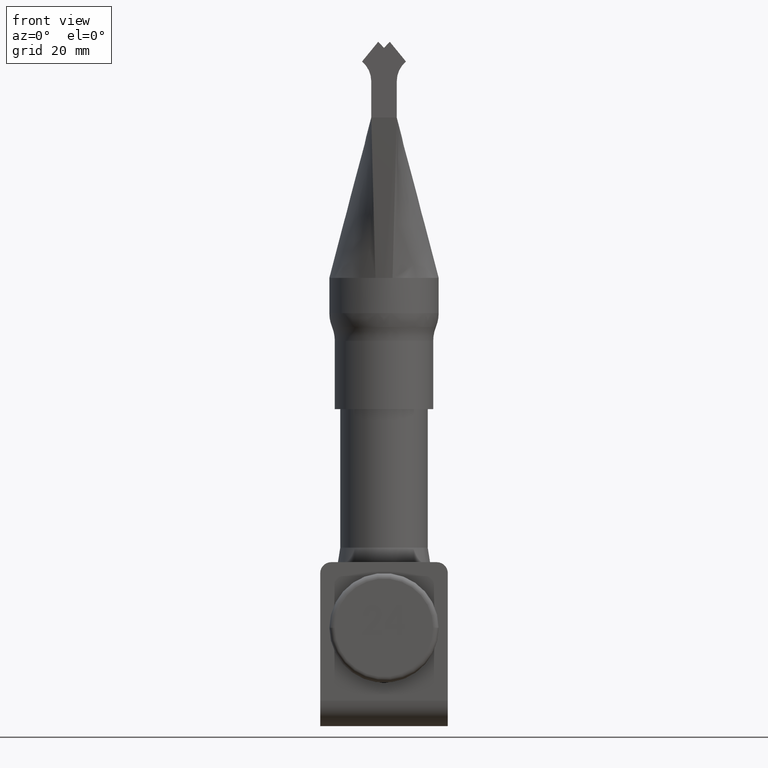
[diagram: clean part render]
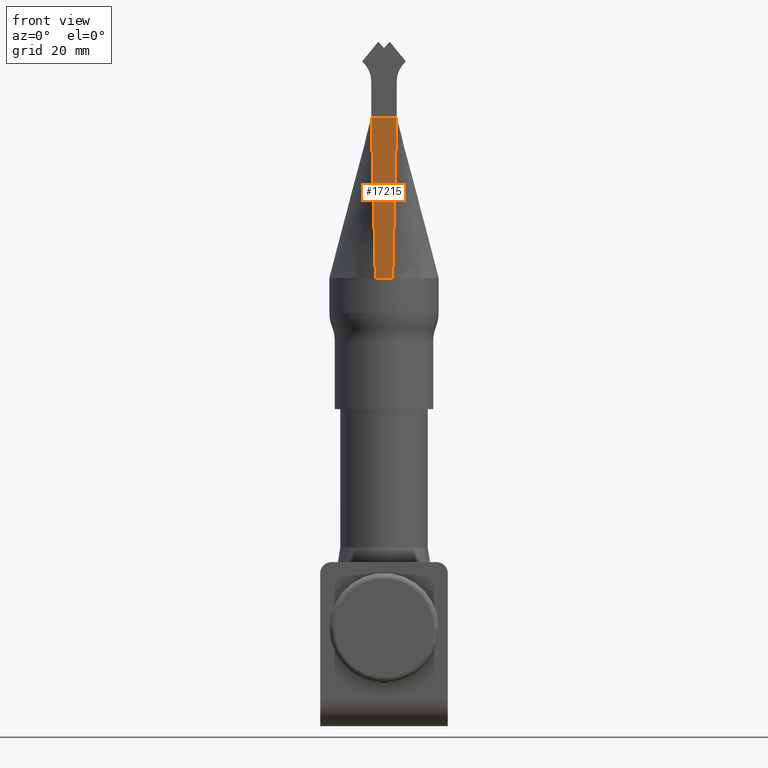
[diagram: same view with one face highlighted and labeled with its STEP entity id]
A machine part, front view. The second image highlights one B-rep face of the part: STEP entity #17215.
In plain terms, the highlighted face is a freeform B-spline surface patch.
Its self-contained STEP definition (entity closure, byte-faithful):
#944 = CARTESIAN_POINT ( 'NONE',  ( -3.581783924020912400, -22.07265637956000100, 80.44440000000000200 ) ) ;
#1356 = CARTESIAN_POINT ( 'NONE',  ( -2.340932838378593700, -22.07133498409400500, 80.44439999999998700 ) ) ;
#1893 = CARTESIAN_POINT ( 'NONE',  ( -2.356732032253958700, -14.81374406239271800, 36.00000000000000700 ) ) ;
#1975 = CARTESIAN_POINT ( 'NONE',  ( 2.356730390204889500, -14.81373377979495000, 36.00000000000000700 ) ) ;
#2855 = CARTESIAN_POINT ( 'NONE',  ( -2.391607597909037900, -14.73436204399964400, 35.56000000000000200 ) ) ;
#3188 = CARTESIAN_POINT ( 'NONE',  ( 1.580907091228484800, -14.93713028772192100, 36.00000000000000700 ) ) ;
#4399 = DIRECTION ( 'NONE',  ( 0.02563530597302258700, -0.1611362089732850900, 0.9865991857108880000 ) ) ;
#4536 = CARTESIAN_POINT ( 'NONE',  ( -3.570000000000002900, -22.00000000000000000, 80.00000000000000000 ) ) ;
#4653 = LINE ( 'NONE', #12990, #20868 ) ;
#4861 = CARTESIAN_POINT ( 'NONE',  ( 2.376169394718436100, -14.73685524299208900, 35.56000000000000200 ) ) ;
#4942 = CARTESIAN_POINT ( 'NONE',  ( 2.340932838378588800, -22.07133498409400500, 80.44439999999998700 ) ) ;
#5025 = CARTESIAN_POINT ( 'NONE',  ( -3.534959354751390700, -22.07260651558015100, 80.44440000000000200 ) ) ;
#5108 = CARTESIAN_POINT ( 'NONE',  ( -1.573382828807442300, -14.86650159059913900, 35.56000000000000200 ) ) ;
#6774 = FACE_OUTER_BOUND ( 'NONE', #21512, .T. ) ;
#6776 = CARTESIAN_POINT ( 'NONE',  ( -2.356725731026978900, -14.81370459502670500, 36.00000000000000700 ) ) ;
#6858 = CARTESIAN_POINT ( 'NONE',  ( 1.170466111312999900, -22.07069999999999900, 80.44439999999998700 ) ) ;
#6940 = CARTESIAN_POINT ( 'NONE',  ( 2.360731191527840200, -14.73934844198453200, 35.56000000000000200 ) ) ;
#6993 = EDGE_CURVE ( 'NONE', #7142, #17659, #21971, .T. ) ;
#7111 = CARTESIAN_POINT ( 'NONE',  ( 1.573382828807436500, -14.86650159059913900, 35.56000000000000200 ) ) ;
#7123 = DIRECTION ( 'NONE',  ( -0.02563530597302262500, -0.1611362089732851800, 0.9865991857108880000 ) ) ;
#7142 = VERTEX_POINT ( 'NONE', #22195 ) ;
#8277 = CARTESIAN_POINT ( 'NONE',  ( -3.500000000000002200, -22.00000000000000000, 80.00000000000000000 ) ) ;
#8307 = CARTESIAN_POINT ( 'NONE',  ( -2.403274849414887900, -14.80629905346499300, 36.00000000000000700 ) ) ;
#8627 = CARTESIAN_POINT ( 'NONE',  ( -1.170466111313003700, -22.07069999999999900, 80.44439999999998700 ) ) ;
#8707 = CARTESIAN_POINT ( 'NONE',  ( 2.403274849414882600, -14.80629905346499500, 36.00000000000000700 ) ) ;
#8873 = CARTESIAN_POINT ( 'NONE',  ( 0.7904840284156090500, -15.00000000000000000, 36.00000000000000000 ) ) ;
#8959 = CARTESIAN_POINT ( 'NONE',  ( 3.546666666666661500, -22.00000000000000000, 80.00000000000000000 ) ) ;
#8997 = ORIENTED_EDGE ( 'NONE', *, *, #9549, .T. ) ;
#9527 = ORIENTED_EDGE ( 'NONE', *, *, #22257, .F. ) ;
#9549 = EDGE_CURVE ( 'NONE', #16452, #9923, #15239, .T. ) ;
#9597 = EDGE_CURVE ( 'NONE', #9923, #7142, #19177, .T. ) ;
#9923 = VERTEX_POINT ( 'NONE', #20081 ) ;
#10035 = CARTESIAN_POINT ( 'NONE',  ( -2.356732032253958700, -14.81374406239271800, 36.00000000000000700 ) ) ;
#10635 = CARTESIAN_POINT ( 'NONE',  ( 3.569999999999994500, -22.00000000000000000, 80.00000000000000000 ) ) ;
#10718 = CARTESIAN_POINT ( 'NONE',  ( -2.333333333333334800, -22.00000000000000000, 79.99999999999998600 ) ) ;
#10800 = CARTESIAN_POINT ( 'NONE',  ( 3.581783924020904400, -22.07265637956000100, 80.44440000000000200 ) ) ;
#10884 = CARTESIAN_POINT ( 'NONE',  ( -3.511547070116629600, -22.07258158359022800, 80.44440000000000200 ) ) ;
#12479 = CARTESIAN_POINT ( 'NONE',  ( 2.391607597909032500, -14.73436204399964600, 35.56000000000000200 ) ) ;
#12561 = CARTESIAN_POINT ( 'NONE',  ( 3.523333333333328500, -22.00000000000000000, 80.00000000000000000 ) ) ;
#12732 = CARTESIAN_POINT ( 'NONE',  ( -1.166666666666668100, -22.00000000000000000, 79.99999999999998600 ) ) ;
#12816 = CARTESIAN_POINT ( 'NONE',  ( -0.7867222020331043900, -14.93000000000000000, 35.55999999999999500 ) ) ;
#12990 = CARTESIAN_POINT ( 'NONE',  ( -2.928362865513490600, -18.40685229751335300, 58.00000000000000000 ) ) ;
#13361 = ORIENTED_EDGE ( 'NONE', *, *, #9597, .T. ) ;
#13447 = CARTESIAN_POINT ( 'NONE',  ( 0.7971672668034468500, -15.06181617058033200, 36.00000001015117600 ) ) ;
#13610 = CARTESIAN_POINT ( 'NONE',  ( -0.7971671322148991000, -15.06181619264289000, 36.00000001403537200 ) ) ;
#14185 = CARTESIAN_POINT ( 'NONE',  ( -3.546666666666669500, -22.00000000000000000, 80.00000000000000000 ) ) ;
#14418 = CARTESIAN_POINT ( 'NONE',  ( 2.387758476618913100, -14.80876756731889900, 36.00000000000000700 ) ) ;
#14761 = CARTESIAN_POINT ( 'NONE',  ( 3.558371639386143800, -22.07263144757007800, 80.44440000000000200 ) ) ;
#15239 = B_SPLINE_CURVE_WITH_KNOTS ( 'NONE', 3,
 ( #1893, #13610, #13447, #1975 ),
 .UNSPECIFIED., .F., .F.,
 ( 4, 4 ),
 ( 0.0000000000000000000, 0.004729419399636646200 ),
 .UNSPECIFIED. ) ;
#16010 = CARTESIAN_POINT ( 'NONE',  ( -2.372242103822948400, -14.81123608117280100, 36.00000000000000700 ) ) ;
#16114 = ORIENTED_EDGE ( 'NONE', *, *, #6993, .T. ) ;
#16325 = CARTESIAN_POINT ( 'NONE',  ( -1.580907091228490800, -14.93713028772191900, 36.00000000000000700 ) ) ;
#16416 = CARTESIAN_POINT ( 'NONE',  ( -2.345292988337249100, -14.74184164097697400, 35.56000000000000200 ) ) ;
#16452 = VERTEX_POINT ( 'NONE', #10035 ) ;
#16580 = CARTESIAN_POINT ( 'NONE',  ( -3.500000000000002200, -22.00000000000000000, 80.00000000000000000 ) ) ;
#17215 = ADVANCED_FACE ( 'NONE', ( #6774 ), #23116, .T. ) ;
#17659 = VERTEX_POINT ( 'NONE', #8277 ) ;
#18028 = VECTOR ( 'NONE', #19994, 1000.000000000000000 ) ;
#18101 = CARTESIAN_POINT ( 'NONE',  ( -2.376169394718441500, -14.73685524299208700, 35.56000000000000200 ) ) ;
#18279 = VECTOR ( 'NONE', #4399, 1000.000000000000200 ) ;
#18437 = CARTESIAN_POINT ( 'NONE',  ( 3.499999999999995100, -22.00000000000000000, 80.00000000000000000 ) ) ;
#18525 = CARTESIAN_POINT ( 'NONE',  ( 2.345292988337243800, -14.74184164097697500, 35.56000000000000200 ) ) ;
#19177 = LINE ( 'NONE', #19664, #18279 ) ;
#19664 = CARTESIAN_POINT ( 'NONE',  ( 2.928362865513484300, -18.40685229751335300, 58.00000000000000000 ) ) ;
#19807 = CARTESIAN_POINT ( 'NONE',  ( -3.523333333333335600, -22.00000000000000000, 80.00000000000000000 ) ) ;
#19994 = DIRECTION ( 'NONE',  ( -1.000000000000000000, -0.0000000000000000000, -0.0000000000000000000 ) ) ;
#20059 = CARTESIAN_POINT ( 'NONE',  ( -2.387758476618918400, -14.80876756731889700, 36.00000000000000700 ) ) ;
#20081 = CARTESIAN_POINT ( 'NONE',  ( 2.356730390204889500, -14.81373377979495000, 36.00000000000000700 ) ) ;
#20221 = CARTESIAN_POINT ( 'NONE',  ( 1.166666666666664100, -22.00000000000000000, 79.99999999999998600 ) ) ;
#20311 = CARTESIAN_POINT ( 'NONE',  ( 3.511547070116622900, -22.07258158359022800, 80.44440000000000200 ) ) ;
#20391 = CARTESIAN_POINT ( 'NONE',  ( 0.7867222020330986200, -14.93000000000000000, 35.55999999999999500 ) ) ;
#20475 = CARTESIAN_POINT ( 'NONE',  ( -0.7904840284156148300, -15.00000000000000200, 36.00000000000000000 ) ) ;
#20868 = VECTOR ( 'NONE', #7123, 1000.000000000000000 ) ;
#21512 = EDGE_LOOP ( 'NONE', ( #8997, #13361, #16114, #9527 ) ) ;
#21671 = CARTESIAN_POINT ( 'NONE',  ( -2.360731191527845100, -14.73934844198453000, 35.56000000000000200 ) ) ;
#21942 = CARTESIAN_POINT ( 'NONE',  ( -3.500000000000002200, -22.00000000000000000, 80.00000000000000000 ) ) ;
#21971 = LINE ( 'NONE', #21942, #18028 ) ;
#22195 = CARTESIAN_POINT ( 'NONE',  ( 3.499999999999996900, -22.00000000000000000, 80.00000000000000000 ) ) ;
#22257 = EDGE_CURVE ( 'NONE', #16452, #17659, #4653, .T. ) ;
#22256 = CARTESIAN_POINT ( 'NONE',  ( 2.333333333333329500, -22.00000000000000000, 79.99999999999998600 ) ) ;
#22337 = CARTESIAN_POINT ( 'NONE',  ( 2.356725731026974000, -14.81370459502670700, 36.00000000000000700 ) ) ;
#22421 = CARTESIAN_POINT ( 'NONE',  ( 2.372242103822943500, -14.81123608117280300, 36.00000000000000700 ) ) ;
#23116 = B_SPLINE_SURFACE_WITH_KNOTS ( 'NONE', 3, 1, ( 
 ( #2855, #8307, #4536, #944 ),
 ( #18101, #20059, #14185, #23930 ),
 ( #21671, #16010, #19807, #5025 ),
 ( #16416, #6776, #16580, #10884 ),
 ( #5108, #16325, #10718, #1356 ),
 ( #12816, #20475, #12732, #8627 ),
 ( #20391, #8873, #20221, #6858 ),
 ( #7111, #3188, #22256, #4942 ),
 ( #18525, #22337, #18437, #20311 ),
 ( #6940, #22421, #12561, #24014 ),
 ( #4861, #14418, #8959, #14761 ),
 ( #12479, #8707, #10635, #10800 ) ),
 .UNSPECIFIED., .F., .F., .F.,
 ( 4, 3, 2, 3, 4 ),
 ( 2, 1, 1, 2 ),
 ( -0.01000000000000000000, 0.0000000000000000000, 0.5000000000000000000, 1.000000000000000000, 1.010000000000000000 ),
 ( -0.01000000000000000000, 0.0000000000000000000, 1.000000000000000000, 1.010100000000000000 ),
 .UNSPECIFIED. ) ;
#23930 = CARTESIAN_POINT ( 'NONE',  ( -3.558371639386151300, -22.07263144757007800, 80.44440000000000200 ) ) ;
#24014 = CARTESIAN_POINT ( 'NONE',  ( 3.534959354751383600, -22.07260651558015100, 80.44440000000000200 ) ) ;